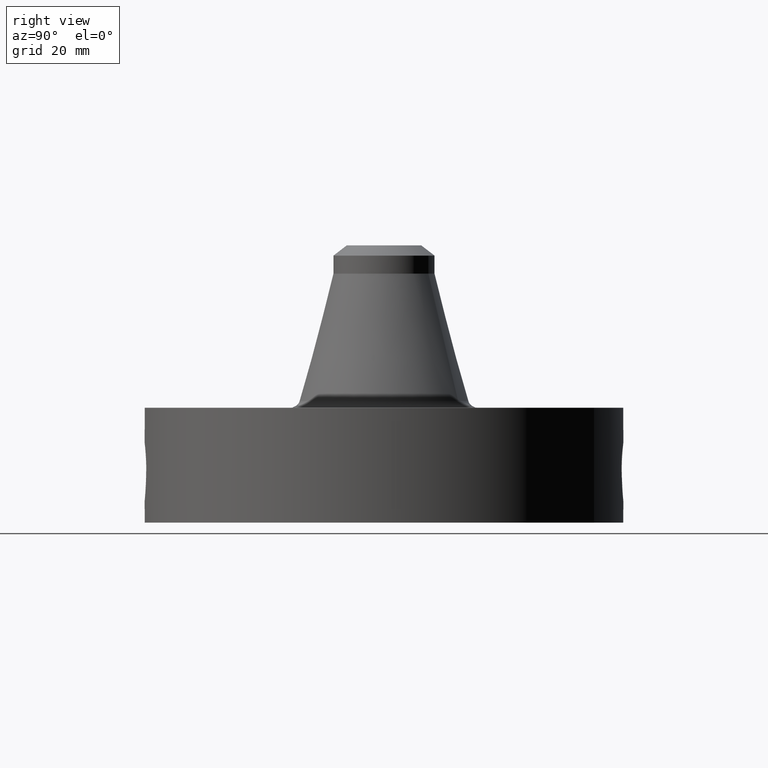
[diagram: clean part render]
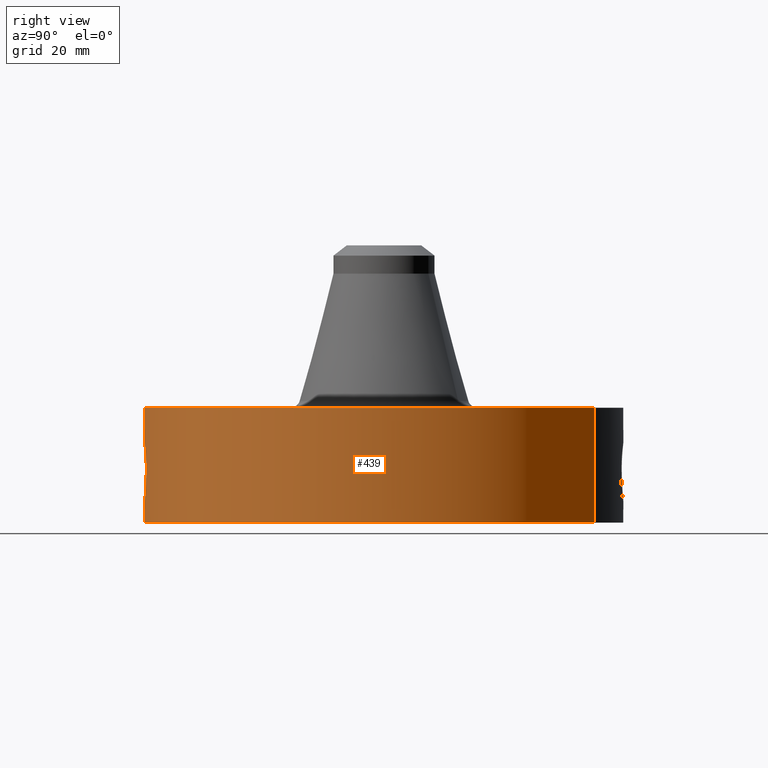
[diagram: same view with one face highlighted and labeled with its STEP entity id]
A machine part, right view. The second image highlights one B-rep face of the part: STEP entity #439.
In plain terms, the highlighted cylindrical surface (partial cylindrical patch) has radius 79.375 mm, axis along (0, 0, -1).
Its self-contained STEP definition (entity closure, byte-faithful):
#38=AXIS2_PLACEMENT_3D('Cylinder Axis2P3D',#35,#36,#37) ;
#197=AXIS2_PLACEMENT_3D('Circle Axis2P3D',#195,#196,$) ;
#315=AXIS2_PLACEMENT_3D('Circle Axis2P3D',#313,#314,$) ;
#35=CARTESIAN_POINT('Axis2P3D Location',(0.,0.,2.06000000001)) ;
#44=CARTESIAN_POINT('Vertex',(-1.49820480814,-2.74244550592,0.250000000001)) ;
#46=CARTESIAN_POINT('Vertex',(1.49820480814,2.74244550592,0.250000000001)) ;
#49=CARTESIAN_POINT('Line Origine',(-1.49820480814,-2.74244550592,1.)) ;
#53=CARTESIAN_POINT('Vertex',(-1.49820480814,-2.74244550592,1.75000000001)) ;
#60=CARTESIAN_POINT('Vertex',(1.49820480814,2.74244550592,1.75000000001)) ;
#63=CARTESIAN_POINT('Line Origine',(1.49820480814,2.74244550592,1.)) ;
#195=CARTESIAN_POINT('Axis2P3D Location',(0.,0.,0.250000000001)) ;
#313=CARTESIAN_POINT('Axis2P3D Location',(0.,0.,1.75000000001)) ;
#325=CARTESIAN_POINT('Control Point',(0.169704717538,-3.1203886471,1.25064240177)) ;
#326=CARTESIAN_POINT('Control Point',(0.131083897928,-3.12248906984,1.27181584559)) ;
#327=CARTESIAN_POINT('Control Point',(0.0889131026692,-3.12414682281,1.28658641962)) ;
#328=CARTESIAN_POINT('Control Point',(0.0448186296737,-3.1249897837,1.29402879621)) ;
#329=CARTESIAN_POINT('Control Point',(0.000718090179823,-3.12499991751,1.2941184944)) ;
#330=CARTESIAN_POINT('Vertex',(0.169704717538,-3.1203886471,1.25064240177)) ;
#332=CARTESIAN_POINT('Vertex',(0.000717741474438,-3.12499991759,1.29411850437)) ;
#336=CARTESIAN_POINT('Control Point',(0.21482816623,-3.11760707259,1.22122183656)) ;
#337=CARTESIAN_POINT('Control Point',(0.200567304467,-3.1185897605,1.23215449373)) ;
#338=CARTESIAN_POINT('Control Point',(0.185468727421,-3.11953130939,1.24199995501)) ;
#339=CARTESIAN_POINT('Control Point',(0.169704717538,-3.1203886471,1.25064240177)) ;
#340=CARTESIAN_POINT('Vertex',(0.214819345972,-3.11760742907,1.22122858909)) ;
#344=CARTESIAN_POINT('Control Point',(0.34931949655,-3.1054147693,0.885751642197)) ;
#345=CARTESIAN_POINT('Control Point',(0.367742420811,-3.10334242564,0.959887140025)) ;
#346=CARTESIAN_POINT('Control Point',(0.362872225581,-3.10371964554,1.04131335409)) ;
#347=CARTESIAN_POINT('Control Point',(0.328329978551,-3.10823670758,1.11718142734)) ;
#348=CARTESIAN_POINT('Control Point',(0.277094139324,-3.11331662871,1.17702051887)) ;
#349=CARTESIAN_POINT('Control Point',(0.214819109822,-3.11760769664,1.2212282695)) ;
#350=CARTESIAN_POINT('Vertex',(0.349319928734,-3.10541445456,0.885751308588)) ;
#354=CARTESIAN_POINT('Control Point',(0.343314957303,-3.10608432599,0.855638008859)) ;
#355=CARTESIAN_POINT('Control Point',(0.345750264288,-3.10581515194,0.865583770031)) ;
#356=CARTESIAN_POINT('Control Point',(0.347754761927,-3.10559078261,0.875635941715)) ;
#357=CARTESIAN_POINT('Control Point',(0.349320760915,-3.10541462708,0.885756640586)) ;
#358=CARTESIAN_POINT('Vertex',(0.343316357086,-3.10608454015,0.855643509776)) ;
#362=CARTESIAN_POINT('Control Point',(0.0277254622303,-3.12487700539,0.530955879279)) ;
#363=CARTESIAN_POINT('Control Point',(0.0774180935206,-3.12443610766,0.537426033597)) ;
#364=CARTESIAN_POINT('Control Point',(0.125647766241,-3.12302033035,0.55312423755)) ;
#365=CARTESIAN_POINT('Control Point',(0.169868141972,-3.12077102492,0.577404819865)) ;
#366=CARTESIAN_POINT('Control Point',(0.247734860047,-3.11560980489,0.639013433563)) ;
#367=CARTESIAN_POINT('Control Point',(0.301618402075,-3.11055308848,0.719926825307)) ;
#368=CARTESIAN_POINT('Control Point',(0.322082740203,-3.10840919462,0.763713133636)) ;
#369=CARTESIAN_POINT('Control Point',(0.335978455052,-3.10689523042,0.809331106585)) ;
#370=CARTESIAN_POINT('Control Point',(0.343315844205,-3.10608422796,0.855643688585)) ;
#371=CARTESIAN_POINT('Vertex',(0.0277254622303,-3.12487700539,0.530955879279)) ;
#375=CARTESIAN_POINT('Control Point',(0.0277254622303,-3.12487700539,0.530955879279)) ;
#376=CARTESIAN_POINT('Control Point',(0.0184757577996,-3.12495907337,0.530843344552)) ;
#377=CARTESIAN_POINT('Control Point',(0.00922750854697,-3.12500000807,0.530982960264)) ;
#378=CARTESIAN_POINT('Control Point',(-2.72878353708E-006,-3.12500000001,0.531374667804)) ;
#379=CARTESIAN_POINT('Vertex',(-2.72878353611E-006,-3.12500000001,0.531374667804)) ;
#383=CARTESIAN_POINT('Control Point',(-0.196165446846,-3.11883698156,0.580926701888)) ;
#384=CARTESIAN_POINT('Control Point',(-0.135166038387,-3.12267366052,0.550852314671)) ;
#385=CARTESIAN_POINT('Control Point',(-0.0679576699126,-3.12499994067,0.534258500682)) ;
#386=CARTESIAN_POINT('Control Point',(-2.72878353707E-006,-3.12500000001,0.531374667804)) ;
#387=CARTESIAN_POINT('Vertex',(-0.196165446846,-3.11883698156,0.580926701888)) ;
#391=CARTESIAN_POINT('Control Point',(-0.208430673671,-3.11804131697,0.587200737705)) ;
#392=CARTESIAN_POINT('Control Point',(-0.204372491256,-3.11831259295,0.585048398356)) ;
#393=CARTESIAN_POINT('Control Point',(-0.200283249719,-3.11857798417,0.582956892053)) ;
#394=CARTESIAN_POINT('Control Point',(-0.196165446846,-3.11883698156,0.580926701888)) ;
#395=CARTESIAN_POINT('Vertex',(-0.208430673671,-3.11804131697,0.587200737705)) ;
#399=CARTESIAN_POINT('Control Point',(-0.208430673671,-3.11804131697,0.587200737705)) ;
#400=CARTESIAN_POINT('Control Point',(-0.260864506727,-3.11453628993,0.621760934519)) ;
#401=CARTESIAN_POINT('Control Point',(-0.305853128425,-3.11042184836,0.667063833406)) ;
#402=CARTESIAN_POINT('Control Point',(-0.341117340451,-3.106504395,0.719732581891)) ;
#403=CARTESIAN_POINT('Control Point',(-0.388122970501,-3.10089437133,0.824758887654)) ;
#404=CARTESIAN_POINT('Control Point',(-0.402021849757,-3.09902386812,0.938522717932)) ;
#405=CARTESIAN_POINT('Control Point',(-0.401434797633,-3.09910244667,0.990960622341)) ;
#406=CARTESIAN_POINT('Control Point',(-0.393890462861,-3.10011096842,1.0430103703)) ;
#407=CARTESIAN_POINT('Control Point',(-0.379413668188,-3.10188173025,1.0934354383)) ;
#408=CARTESIAN_POINT('Vertex',(-0.379413668188,-3.10188173025,1.0934354383)) ;
#412=CARTESIAN_POINT('Control Point',(-0.379413668188,-3.10188173025,1.0934354383)) ;
#413=CARTESIAN_POINT('Control Point',(-0.3330433789,-3.10755361689,1.1749903991)) ;
#414=CARTESIAN_POINT('Control Point',(-0.261045420758,-3.11551492819,1.23977072284)) ;
#415=CARTESIAN_POINT('Control Point',(-0.176679220035,-3.12196183645,1.28008186733)) ;
#416=CARTESIAN_POINT('Control Point',(-0.0874794905445,-3.12500072397,1.29844239313)) ;
#417=CARTESIAN_POINT('Control Point',(2.58579354852E-005,-3.12499999991,1.29415298443)) ;
#418=CARTESIAN_POINT('Vertex',(2.58579354921E-005,-3.12499999991,1.29415298443)) ;
#422=CARTESIAN_POINT('Control Point',(0.000717741460534,-3.12499991759,1.29411850435)) ;
#423=CARTESIAN_POINT('Control Point',(0.000371821821209,-3.12499999704,1.29413602569)) ;
#424=CARTESIAN_POINT('Control Point',(2.58579457524E-005,-3.12499999991,1.29415298442)) ;
#36=DIRECTION('Axis2P3D Direction',(0.,0.,-0.0393700787402)) ;
#37=DIRECTION('Axis2P3D XDirection',(0.0188750212049,0.0345504945626,0.)) ;
#50=DIRECTION('Vector Direction',(0.,0.,-0.0393700787402)) ;
#64=DIRECTION('Vector Direction',(0.,0.,-0.0393700787402)) ;
#196=DIRECTION('Axis2P3D Direction',(0.,0.,-0.0393700787402)) ;
#314=DIRECTION('Axis2P3D Direction',(0.,0.,-0.0393700787402)) ;
#51=VECTOR('Line Direction',#50,0.0393700787402) ;
#65=VECTOR('Line Direction',#64,0.0393700787402) ;
#319=ORIENTED_EDGE('',*,*,#199,.F.) ;
#320=ORIENTED_EDGE('',*,*,#67,.T.) ;
#321=ORIENTED_EDGE('',*,*,#317,.T.) ;
#322=ORIENTED_EDGE('',*,*,#55,.F.) ;
#427=ORIENTED_EDGE('',*,*,#334,.F.) ;
#428=ORIENTED_EDGE('',*,*,#342,.F.) ;
#429=ORIENTED_EDGE('',*,*,#352,.F.) ;
#430=ORIENTED_EDGE('',*,*,#360,.F.) ;
#431=ORIENTED_EDGE('',*,*,#373,.F.) ;
#432=ORIENTED_EDGE('',*,*,#381,.T.) ;
#433=ORIENTED_EDGE('',*,*,#389,.F.) ;
#434=ORIENTED_EDGE('',*,*,#397,.F.) ;
#435=ORIENTED_EDGE('',*,*,#410,.T.) ;
#436=ORIENTED_EDGE('',*,*,#420,.T.) ;
#437=ORIENTED_EDGE('',*,*,#425,.F.) ;
#438=FACE_BOUND('',#426,.T.) ;
#439=ADVANCED_FACE('PartBody',(#323,#438),#39,.T.) ;
#324=B_SPLINE_CURVE_WITH_KNOTS('',4,(#325,#326,#327,#328,#329),.UNSPECIFIED.,.F.,.U.,(5,5),(0.,6.52343802552),.UNSPECIFIED.) ;
#335=B_SPLINE_CURVE_WITH_KNOTS('',3,(#336,#337,#338,#339),.UNSPECIFIED.,.F.,.U.,(4,4),(26.541384374,28.5384071433),.UNSPECIFIED.) ;
#343=B_SPLINE_CURVE_WITH_KNOTS('',5,(#344,#345,#346,#347,#348,#349),.UNSPECIFIED.,.F.,.U.,(6,6),(0.,14.2714475295),.UNSPECIFIED.) ;
#353=B_SPLINE_CURVE_WITH_KNOTS('',3,(#354,#355,#356,#357),.UNSPECIFIED.,.F.,.U.,(4,4),(11.358188471,12.4955466901),.UNSPECIFIED.) ;
#361=B_SPLINE_CURVE_WITH_KNOTS('',5,(#362,#363,#364,#365,#366,#367,#368,#369,#370),.UNSPECIFIED.,.F.,.U.,(6,3,6),(0.,8.71048208788,17.4948935117),.UNSPECIFIED.) ;
#374=B_SPLINE_CURVE_WITH_KNOTS('',3,(#375,#376,#377,#378),.UNSPECIFIED.,.F.,.U.,(4,4),(0.,0.964667702995),.UNSPECIFIED.) ;
#382=B_SPLINE_CURVE_WITH_KNOTS('',3,(#383,#384,#385,#386),.UNSPECIFIED.,.F.,.U.,(4,4),(0.,7.10208574391),.UNSPECIFIED.) ;
#390=B_SPLINE_CURVE_WITH_KNOTS('',3,(#391,#392,#393,#394),.UNSPECIFIED.,.F.,.U.,(4,4),(0.,0.479430700486),.UNSPECIFIED.) ;
#398=B_SPLINE_CURVE_WITH_KNOTS('',5,(#399,#400,#401,#402,#403,#404,#405,#406,#407),.UNSPECIFIED.,.F.,.U.,(6,3,6),(0.,10.9217337288,20.0515719978),.UNSPECIFIED.) ;
#411=B_SPLINE_CURVE_WITH_KNOTS('',5,(#412,#413,#414,#415,#416,#417),.UNSPECIFIED.,.F.,.U.,(6,6),(0.,16.3565571121),.UNSPECIFIED.) ;
#421=B_SPLINE_CURVE_WITH_KNOTS('',2,(#422,#423,#424),.UNSPECIFIED.,.F.,.U.,(3,3),(1.18594957712,1.2118166972),.UNSPECIFIED.) ;
#198=CIRCLE('generated circle',#197,3.12500000001) ;
#316=CIRCLE('generated circle',#315,3.12500000001) ;
#39=CYLINDRICAL_SURFACE('generated cylinder',#38,3.12500000001) ;
#55=EDGE_CURVE('',#45,#54,#52,.F.) ;
#67=EDGE_CURVE('',#47,#61,#66,.F.) ;
#199=EDGE_CURVE('',#47,#45,#198,.T.) ;
#317=EDGE_CURVE('',#61,#54,#316,.T.) ;
#334=EDGE_CURVE('',#331,#333,#324,.T.) ;
#342=EDGE_CURVE('',#341,#331,#335,.T.) ;
#352=EDGE_CURVE('',#351,#341,#343,.T.) ;
#360=EDGE_CURVE('',#359,#351,#353,.T.) ;
#373=EDGE_CURVE('',#372,#359,#361,.T.) ;
#381=EDGE_CURVE('',#372,#380,#374,.T.) ;
#389=EDGE_CURVE('',#388,#380,#382,.T.) ;
#397=EDGE_CURVE('',#396,#388,#390,.T.) ;
#410=EDGE_CURVE('',#396,#409,#398,.T.) ;
#420=EDGE_CURVE('',#409,#419,#411,.T.) ;
#425=EDGE_CURVE('',#333,#419,#421,.T.) ;
#318=EDGE_LOOP('',(#319,#320,#321,#322)) ;
#426=EDGE_LOOP('',(#427,#428,#429,#430,#431,#432,#433,#434,#435,#436,#437)) ;
#323=FACE_OUTER_BOUND('',#318,.T.) ;
#52=LINE('Line',#49,#51) ;
#66=LINE('Line',#63,#65) ;
#45=VERTEX_POINT('',#44) ;
#47=VERTEX_POINT('',#46) ;
#54=VERTEX_POINT('',#53) ;
#61=VERTEX_POINT('',#60) ;
#331=VERTEX_POINT('',#330) ;
#333=VERTEX_POINT('',#332) ;
#341=VERTEX_POINT('',#340) ;
#351=VERTEX_POINT('',#350) ;
#359=VERTEX_POINT('',#358) ;
#372=VERTEX_POINT('',#371) ;
#380=VERTEX_POINT('',#379) ;
#388=VERTEX_POINT('',#387) ;
#396=VERTEX_POINT('',#395) ;
#409=VERTEX_POINT('',#408) ;
#419=VERTEX_POINT('',#418) ;